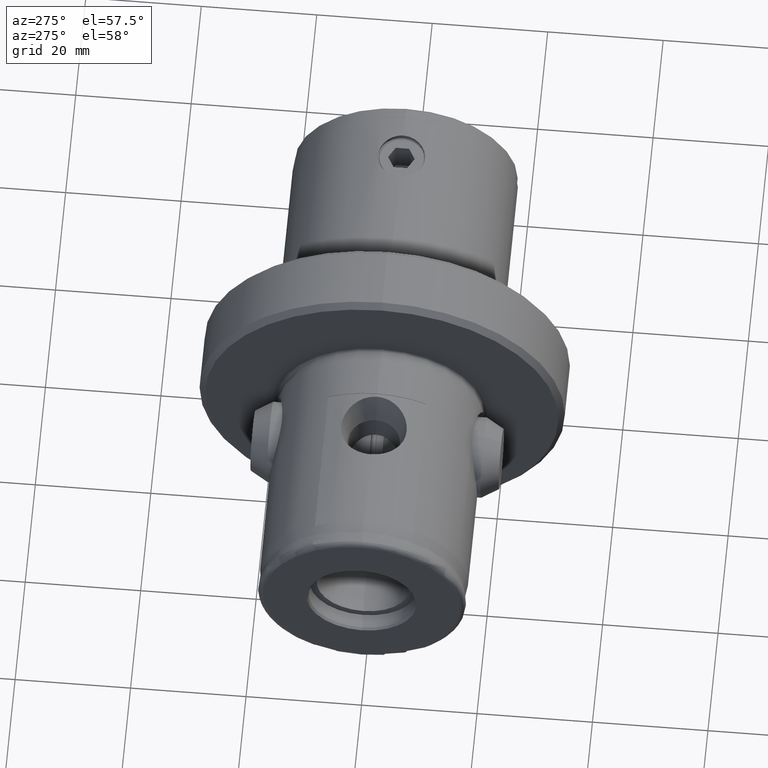
[diagram: clean part render]
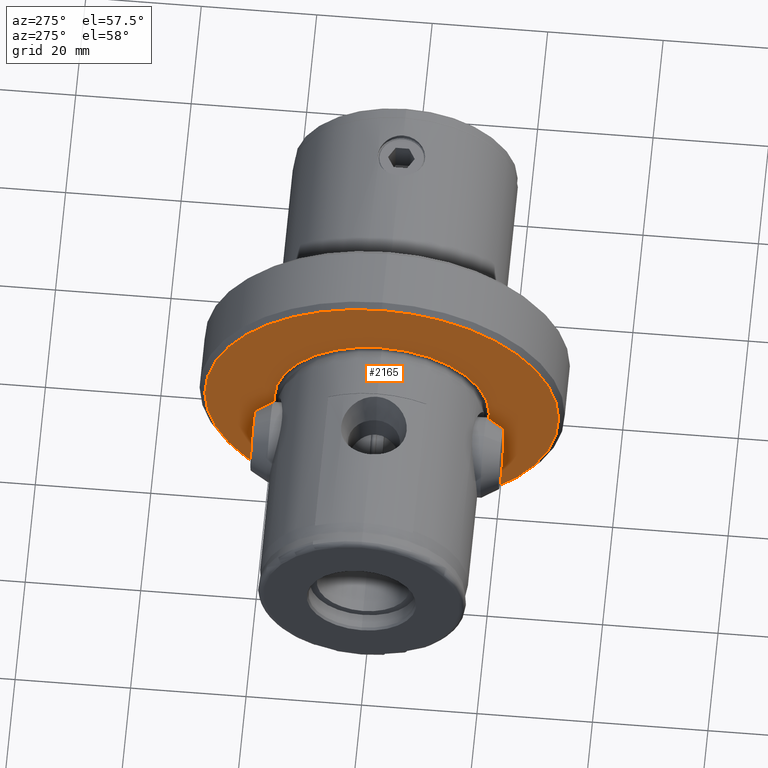
[diagram: same view with one face highlighted and labeled with its STEP entity id]
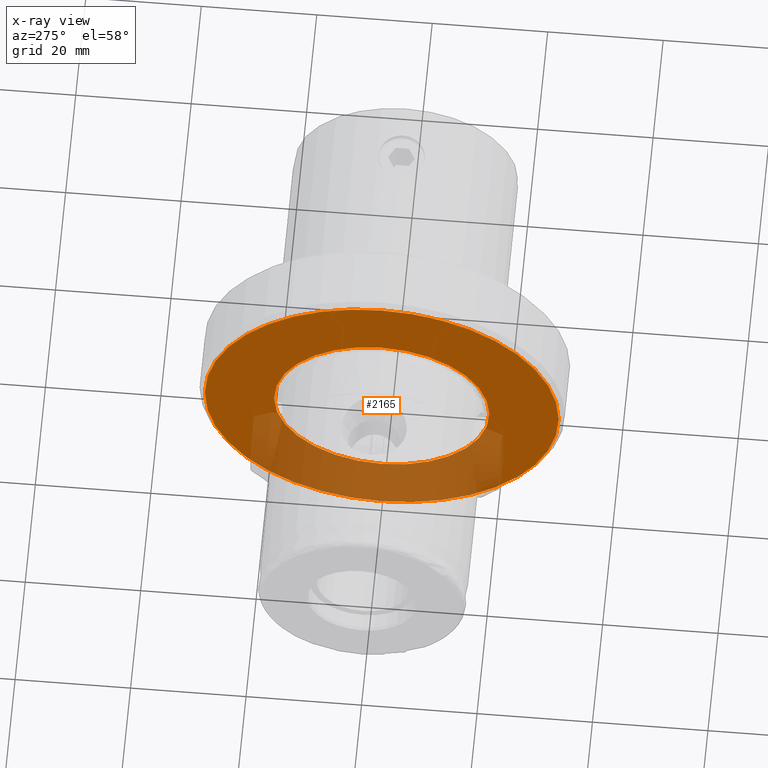
[diagram: x-ray of the same camera — body ghosted, the highlighted face saturated]
A machine part, auxiliary view. The second image highlights one B-rep face of the part: STEP entity #2165.
The next image is the same camera in x-ray: the body ghosted, the highlighted face saturated — about 34% of this face is hidden behind the body in this view.
In plain terms, the highlighted planar face has unit normal (1, 0, 0).
Its self-contained STEP definition (entity closure, byte-faithful):
#153 = DIRECTION ( 'NONE',  ( 0.0000000000000000000, 0.0000000000000000000, 1.000000000000000000 ) ) ;
#199 = EDGE_CURVE ( 'NONE', #2963, #1718, #4575, .T. ) ;
#350 = AXIS2_PLACEMENT_3D ( 'NONE', #2369, #5158, #2761 ) ;
#352 = CARTESIAN_POINT ( 'NONE',  ( 40.00000000000000000, 18.63903132955060100, 0.0000000000000000000 ) ) ;
#362 = ORIENTED_EDGE ( 'NONE', *, *, #2457, .T. ) ;
#478 = EDGE_LOOP ( 'NONE', ( #3803, #362 ) ) ;
#582 = CARTESIAN_POINT ( 'NONE',  ( 40.00000000000000000, 0.0000000000000000000, 0.0000000000000000000 ) ) ;
#980 = CIRCLE ( 'NONE', #350, 18.63903132955060100 ) ;
#996 = DIRECTION ( 'NONE',  ( 0.0000000000000000000, 0.0000000000000000000, 1.000000000000000000 ) ) ;
#1114 = EDGE_CURVE ( 'NONE', #5060, #5023, #3527, .T. ) ;
#1161 = DIRECTION ( 'NONE',  ( 0.0000000000000000000, 0.0000000000000000000, 1.000000000000000000 ) ) ;
#1168 = DIRECTION ( 'NONE',  ( 0.0000000000000000000, 0.0000000000000000000, -1.000000000000000000 ) ) ;
#1555 = CARTESIAN_POINT ( 'NONE',  ( 40.00000000000000000, 0.0000000000000000000, 0.0000000000000000000 ) ) ;
#1718 = VERTEX_POINT ( 'NONE', #3116 ) ;
#1778 = AXIS2_PLACEMENT_3D ( 'NONE', #582, #3387, #996 ) ;
#1876 = AXIS2_PLACEMENT_3D ( 'NONE', #1555, #3955, #1161 ) ;
#2029 = CIRCLE ( 'NONE', #1778, 30.63500000000000200 ) ;
#2093 = FACE_OUTER_BOUND ( 'NONE', #478, .T. ) ;
#2153 = AXIS2_PLACEMENT_3D ( 'NONE', #352, #3559, #1168 ) ;
#2165 = ADVANCED_FACE ( 'NONE', ( #4214, #2093 ), #4735, .F. ) ;
#2369 = CARTESIAN_POINT ( 'NONE',  ( 40.00000000000000000, 0.0000000000000000000, 0.0000000000000000000 ) ) ;
#2457 = EDGE_CURVE ( 'NONE', #5023, #5060, #2029, .T. ) ;
#2544 = DIRECTION ( 'NONE',  ( -1.000000000000000000, -0.0000000000000000000, -0.0000000000000000000 ) ) ;
#2761 = DIRECTION ( 'NONE',  ( 0.0000000000000000000, 0.0000000000000000000, 1.000000000000000000 ) ) ;
#2804 = EDGE_LOOP ( 'NONE', ( #3580, #3494 ) ) ;
#2963 = VERTEX_POINT ( 'NONE', #4776 ) ;
#3116 = CARTESIAN_POINT ( 'NONE',  ( 40.00000000000000000, 2.282623005694137900E-015, -18.63903132955060100 ) ) ;
#3387 = DIRECTION ( 'NONE',  ( -1.000000000000000000, -0.0000000000000000000, -0.0000000000000000000 ) ) ;
#3494 = ORIENTED_EDGE ( 'NONE', *, *, #3716, .F. ) ;
#3527 = CIRCLE ( 'NONE', #4001, 30.63500000000000200 ) ;
#3559 = DIRECTION ( 'NONE',  ( 1.000000000000000000, 0.0000000000000000000, 0.0000000000000000000 ) ) ;
#3580 = ORIENTED_EDGE ( 'NONE', *, *, #199, .F. ) ;
#3716 = EDGE_CURVE ( 'NONE', #1718, #2963, #980, .T. ) ;
#3803 = ORIENTED_EDGE ( 'NONE', *, *, #1114, .T. ) ;
#3955 = DIRECTION ( 'NONE',  ( -1.000000000000000000, -0.0000000000000000000, -0.0000000000000000000 ) ) ;
#4001 = AXIS2_PLACEMENT_3D ( 'NONE', #4946, #2544, #153 ) ;
#4059 = CARTESIAN_POINT ( 'NONE',  ( 40.00000000000000000, 3.812937809145284600E-015, 30.63500000000000200 ) ) ;
#4074 = CARTESIAN_POINT ( 'NONE',  ( 40.00000000000000000, 0.0000000000000000000, -30.63500000000000200 ) ) ;
#4214 = FACE_BOUND ( 'NONE', #2804, .T. ) ;
#4575 = CIRCLE ( 'NONE', #1876, 18.63903132955060100 ) ;
#4735 = PLANE ( 'NONE',  #2153 ) ;
#4776 = CARTESIAN_POINT ( 'NONE',  ( 40.00000000000000000, 0.0000000000000000000, 18.63903132955060100 ) ) ;
#4946 = CARTESIAN_POINT ( 'NONE',  ( 40.00000000000000000, 0.0000000000000000000, 0.0000000000000000000 ) ) ;
#5023 = VERTEX_POINT ( 'NONE', #4059 ) ;
#5060 = VERTEX_POINT ( 'NONE', #4074 ) ;
#5158 = DIRECTION ( 'NONE',  ( -1.000000000000000000, -0.0000000000000000000, -0.0000000000000000000 ) ) ;